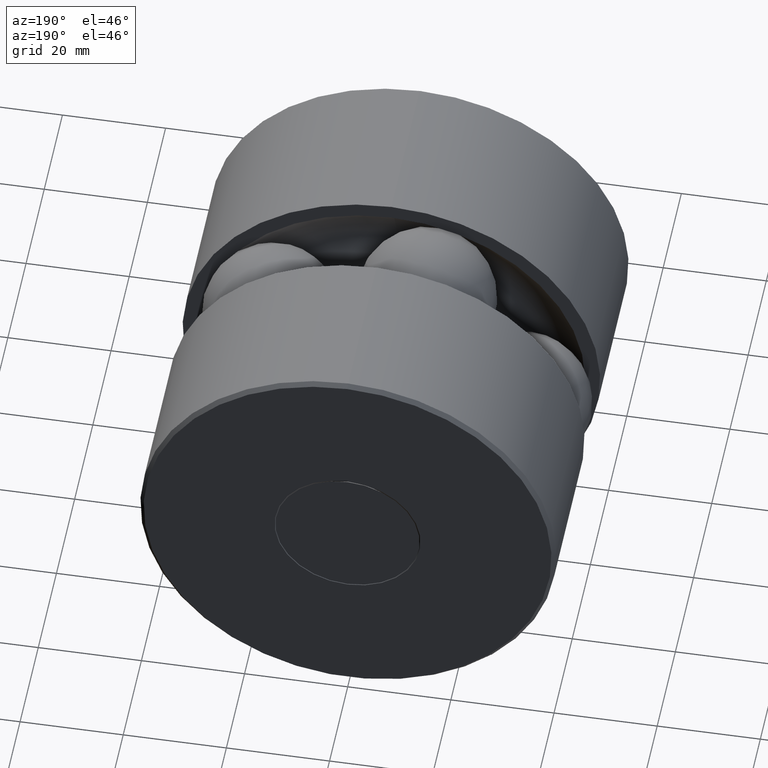
[diagram: clean part render]
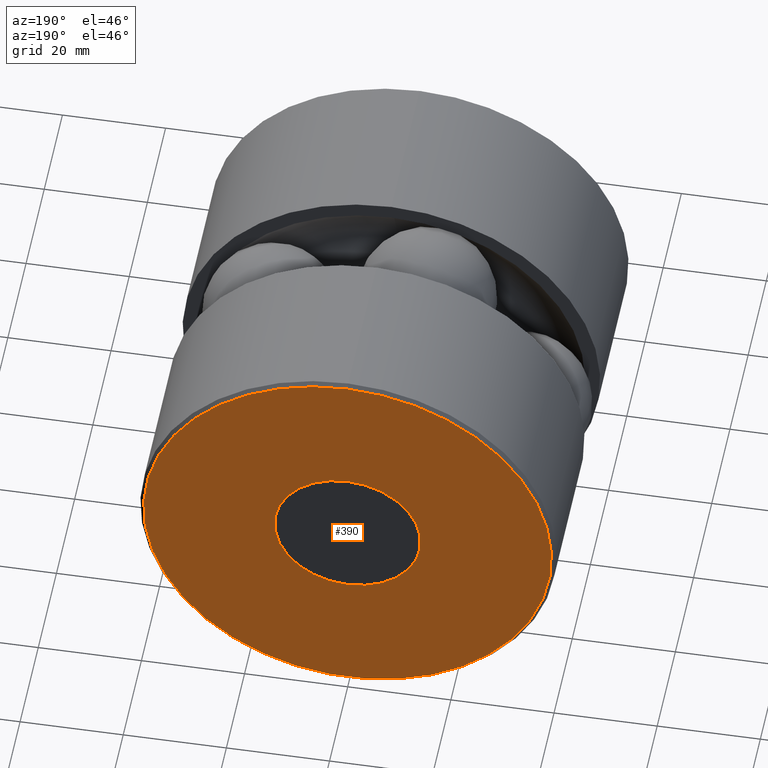
[diagram: same view with one face highlighted and labeled with its STEP entity id]
A machine part, auxiliary view. The second image highlights one B-rep face of the part: STEP entity #390.
In plain terms, the highlighted planar face has unit normal (-0, 1, 0).
Its self-contained STEP definition (entity closure, byte-faithful):
#2 = AXIS2_PLACEMENT_3D ( 'NONE', #74, #32, #29 ) ;
#29 = DIRECTION ( 'NONE',  ( 0.0000000000000000000, 0.0000000000000000000, 1.000000000000000000 ) ) ;
#30 = VERTEX_POINT ( 'NONE', #193 ) ;
#32 = DIRECTION ( 'NONE',  ( -0.0000000000000000000, 1.000000000000000000, 0.0000000000000000000 ) ) ;
#35 = ORIENTED_EDGE ( 'NONE', *, *, #271, .F. ) ;
#38 = PLANE ( 'NONE',  #2 ) ;
#64 = DIRECTION ( 'NONE',  ( 0.0000000000000000000, 0.0000000000000000000, 1.000000000000000000 ) ) ;
#74 = CARTESIAN_POINT ( 'NONE',  ( -0.5575710678118610500, 3.155999999999999700, 0.0000000000000000000 ) ) ;
#80 = ORIENTED_EDGE ( 'NONE', *, *, #535, .T. ) ;
#103 = CIRCLE ( 'NONE', #358, 1.557000000000000400 ) ;
#107 = AXIS2_PLACEMENT_3D ( 'NONE', #323, #320, #314 ) ;
#139 = EDGE_LOOP ( 'NONE', ( #35 ) ) ;
#164 = EDGE_LOOP ( 'NONE', ( #80 ) ) ;
#183 = VERTEX_POINT ( 'NONE', #447 ) ;
#190 = FACE_BOUND ( 'NONE', #139, .T. ) ;
#193 = CARTESIAN_POINT ( 'NONE',  ( 0.0000000000000000000, 3.155999999999999700, 1.557000000000000400 ) ) ;
#271 = EDGE_CURVE ( 'NONE', #183, #183, #467, .T. ) ;
#314 = DIRECTION ( 'NONE',  ( 0.0000000000000000000, 0.0000000000000000000, 1.000000000000000000 ) ) ;
#320 = DIRECTION ( 'NONE',  ( -0.0000000000000000000, 1.000000000000000000, -0.0000000000000000000 ) ) ;
#323 = CARTESIAN_POINT ( 'NONE',  ( 0.0000000000000000000, 3.155999999999999700, 0.0000000000000000000 ) ) ;
#326 = FACE_OUTER_BOUND ( 'NONE', #164, .T. ) ;
#358 = AXIS2_PLACEMENT_3D ( 'NONE', #472, #404, #64 ) ;
#390 = ADVANCED_FACE ( 'NONE', ( #326, #190 ), #38, .T. ) ;
#404 = DIRECTION ( 'NONE',  ( -0.0000000000000000000, 1.000000000000000000, -0.0000000000000000000 ) ) ;
#447 = CARTESIAN_POINT ( 'NONE',  ( 0.0000000000000000000, 3.155999999999999700, 0.5575710678118610500 ) ) ;
#467 = CIRCLE ( 'NONE', #107, 0.5575710678118610500 ) ;
#472 = CARTESIAN_POINT ( 'NONE',  ( 0.0000000000000000000, 3.155999999999999700, 0.0000000000000000000 ) ) ;
#535 = EDGE_CURVE ( 'NONE', #30, #30, #103, .T. ) ;